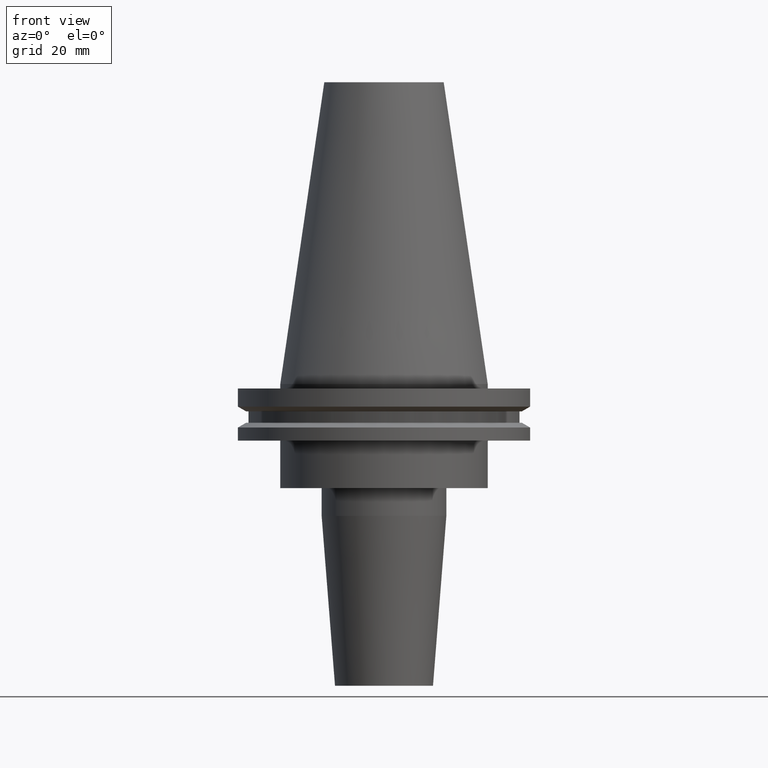
[diagram: clean part render]
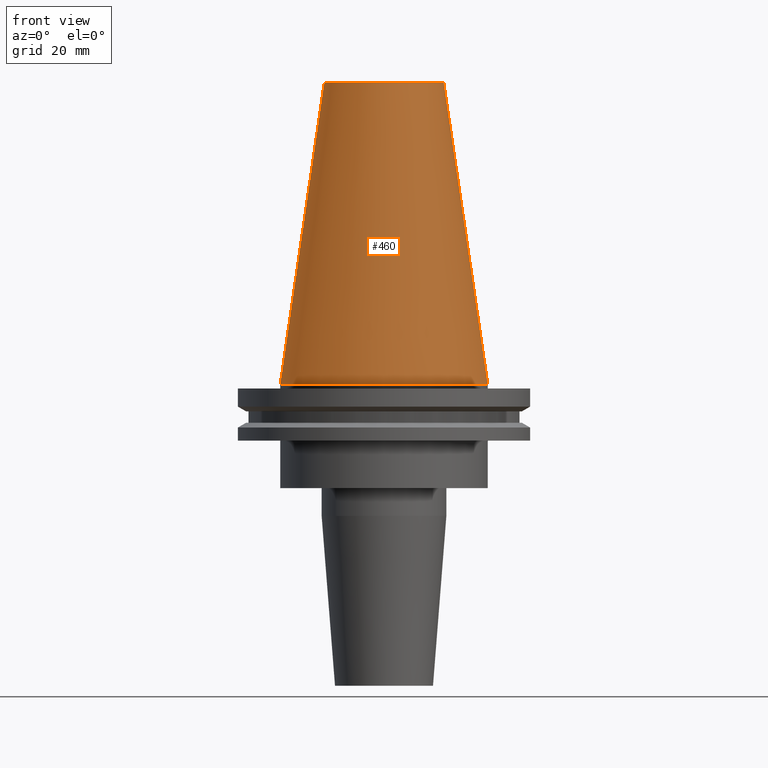
[diagram: same view with one face highlighted and labeled with its STEP entity id]
A machine part, front view. The second image highlights one B-rep face of the part: STEP entity #460.
In plain terms, the highlighted conical surface has half-angle 8.297 deg.
Its self-contained STEP definition (entity closure, byte-faithful):
#32 = CARTESIAN_POINT ( 'NONE',  ( 34.92499999999999005, 4.277078946022130098E-15, 0.000000000000000000 ) ) ;
#45 = DIRECTION ( 'NONE',  ( 1.000000000000000000, 0.000000000000000000, 0.000000000000000000 ) ) ;
#47 = DIRECTION ( 'NONE',  ( -1.000000000000000000, 0.000000000000000000, 0.000000000000000000 ) ) ;
#56 = CONICAL_SURFACE ( 'NONE', #761, 34.92499999999999005, 0.1448138465474119452 ) ;
#82 = EDGE_LOOP ( 'NONE', ( #806, #770, #641, #159 ) ) ;
#102 = CARTESIAN_POINT ( 'NONE',  ( -20.10819343178871321, 0.000000000000000000, 101.5999999999999801 ) ) ;
#113 = VERTEX_POINT ( 'NONE', #289 ) ;
#118 = EDGE_CURVE ( 'NONE', #321, #113, #636, .T. ) ;
#159 = ORIENTED_EDGE ( 'NONE', *, *, #175, .T. ) ;
#175 = EDGE_CURVE ( 'NONE', #599, #113, #594, .T. ) ;
#189 = DIRECTION ( 'NONE',  ( 0.000000000000000000, 0.000000000000000000, -1.000000000000000000 ) ) ;
#216 = EDGE_CURVE ( 'NONE', #735, #321, #528, .T. ) ;
#252 = FACE_OUTER_BOUND ( 'NONE', #82, .T. ) ;
#259 = DIRECTION ( 'NONE',  ( -0.000000000000000000, -0.000000000000000000, 1.000000000000000000 ) ) ;
#267 = DIRECTION ( 'NONE',  ( -0.000000000000000000, -0.000000000000000000, 1.000000000000000000 ) ) ;
#289 = CARTESIAN_POINT ( 'NONE',  ( 34.92499999999999005, 4.277078946022130098E-15, 0.000000000000000000 ) ) ;
#310 = DIRECTION ( 'NONE',  ( 1.000000000000000000, 0.000000000000000000, 0.000000000000000000 ) ) ;
#321 = VERTEX_POINT ( 'NONE', #540 ) ;
#324 = CARTESIAN_POINT ( 'NONE',  ( -34.92499999999999005, 0.000000000000000000, 0.000000000000000000 ) ) ;
#325 = EDGE_CURVE ( 'NONE', #735, #599, #353, .T. ) ;
#353 = LINE ( 'NONE', #474, #644 ) ;
#460 = ADVANCED_FACE ( 'NONE', ( #252 ), #56, .T. ) ;
#474 = CARTESIAN_POINT ( 'NONE',  ( -34.92499999999999005, 0.000000000000000000, 0.000000000000000000 ) ) ;
#482 = DIRECTION ( 'NONE',  ( -0.1443082272672999988, 0.000000000000000000, -0.9895327864921755756 ) ) ;
#483 = DIRECTION ( 'NONE',  ( 0.1443082272672999988, 1.767266086135277066E-17, -0.9895327864921755756 ) ) ;
#528 = CIRCLE ( 'NONE', #627, 20.10819343178871321 ) ;
#536 = CARTESIAN_POINT ( 'NONE',  ( 0.000000000000000000, 0.000000000000000000, 0.000000000000000000 ) ) ;
#540 = CARTESIAN_POINT ( 'NONE',  ( 20.10819343178871321, 3.369811209154858606E-15, 101.5999999999999801 ) ) ;
#594 = CIRCLE ( 'NONE', #610, 34.92499999999999005 ) ;
#599 = VERTEX_POINT ( 'NONE', #324 ) ;
#610 = AXIS2_PLACEMENT_3D ( 'NONE', #536, #267, #45 ) ;
#627 = AXIS2_PLACEMENT_3D ( 'NONE', #716, #259, #310 ) ;
#636 = LINE ( 'NONE', #32, #844 ) ;
#641 = ORIENTED_EDGE ( 'NONE', *, *, #325, .T. ) ;
#644 = VECTOR ( 'NONE', #482, 999.9999999999998863 ) ;
#716 = CARTESIAN_POINT ( 'NONE',  ( 0.000000000000000000, 0.000000000000000000, 101.5999999999999801 ) ) ;
#735 = VERTEX_POINT ( 'NONE', #102 ) ;
#761 = AXIS2_PLACEMENT_3D ( 'NONE', #850, #189, #47 ) ;
#770 = ORIENTED_EDGE ( 'NONE', *, *, #216, .F. ) ;
#806 = ORIENTED_EDGE ( 'NONE', *, *, #118, .F. ) ;
#844 = VECTOR ( 'NONE', #483, 999.9999999999998863 ) ;
#850 = CARTESIAN_POINT ( 'NONE',  ( 0.000000000000000000, 0.000000000000000000, 0.000000000000000000 ) ) ;